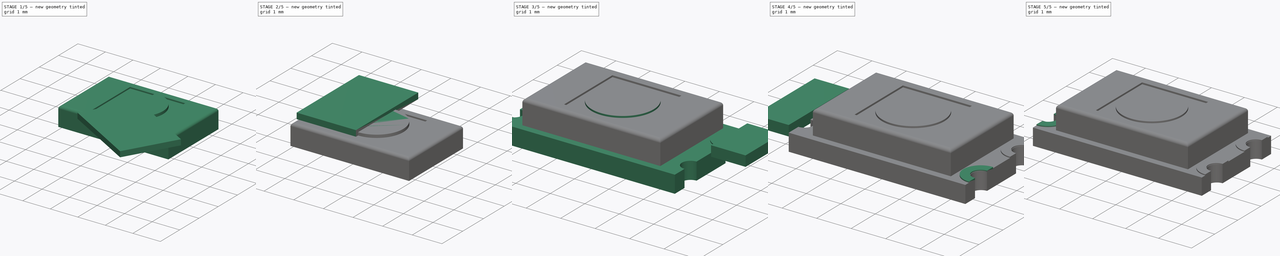
[diagram: build sequence overview — one tinted view per stage of 5, left to right]
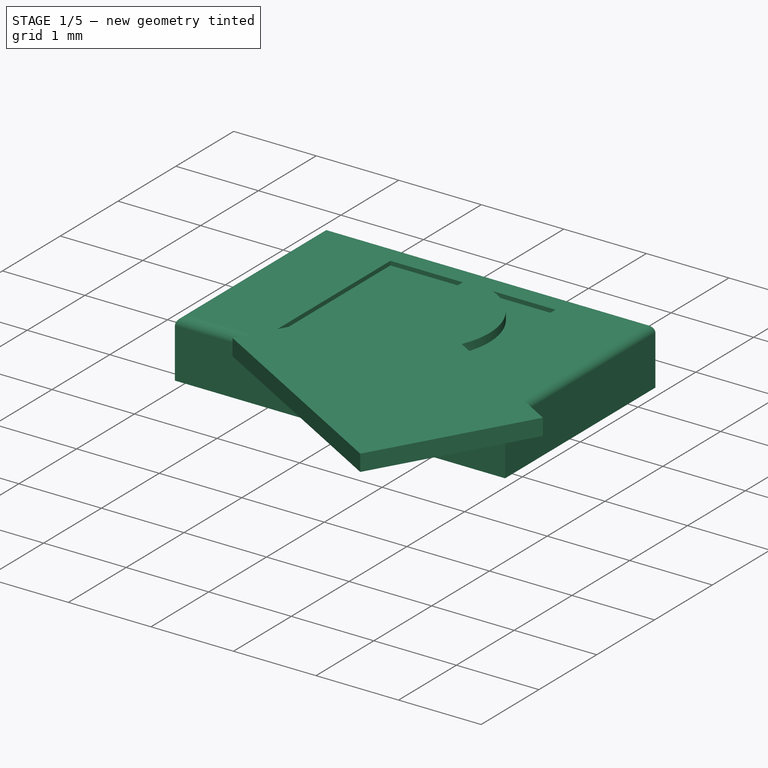
[diagram: stage 1 of 5 — iso view after this stage's code; geometry added in this stage tinted green]
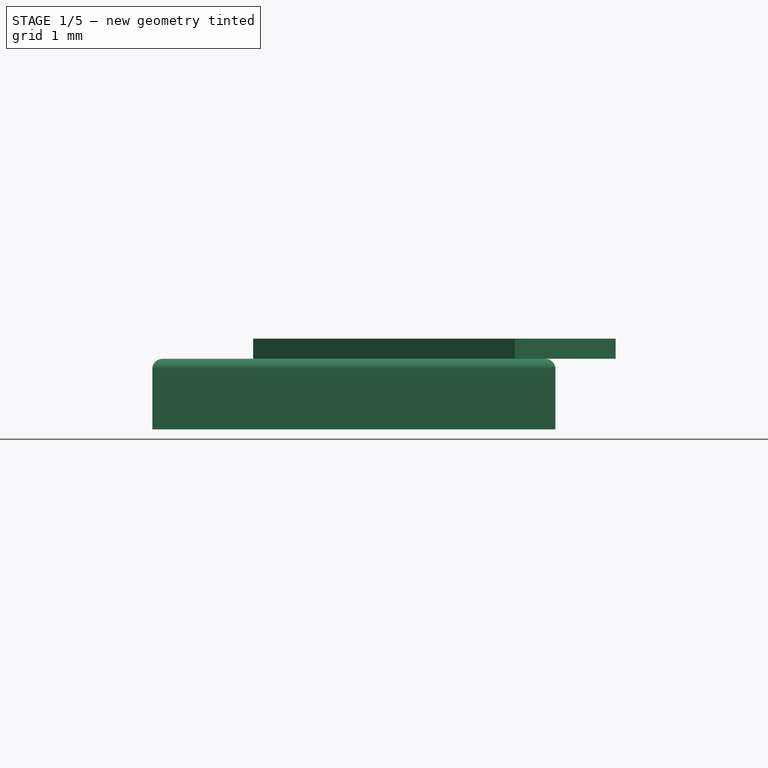
[diagram: stage 1 of 5 — front view after this stage's code; geometry added in this stage tinted green]
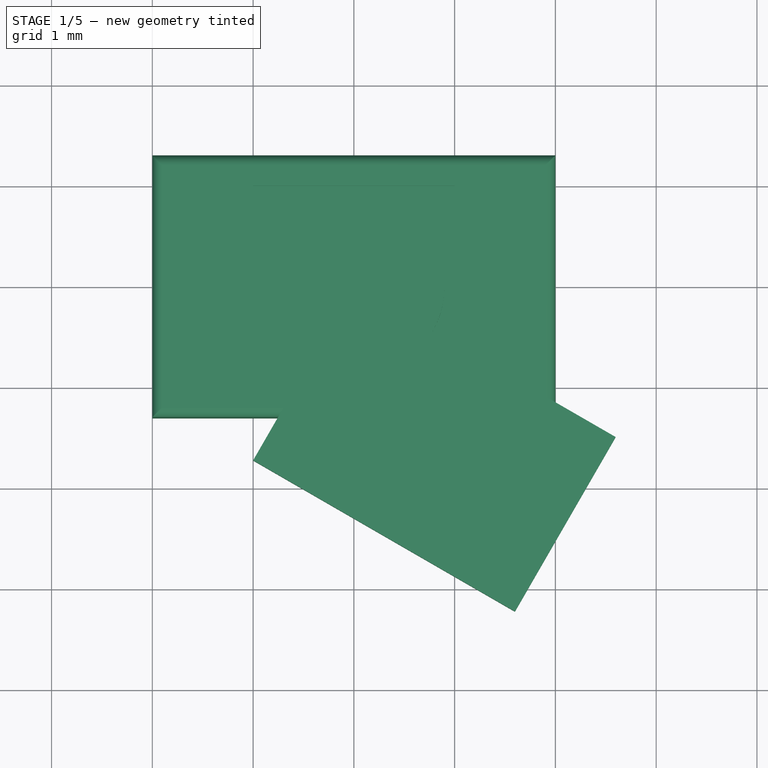
[diagram: stage 1 of 5 — top view after this stage's code; geometry added in this stage tinted green]
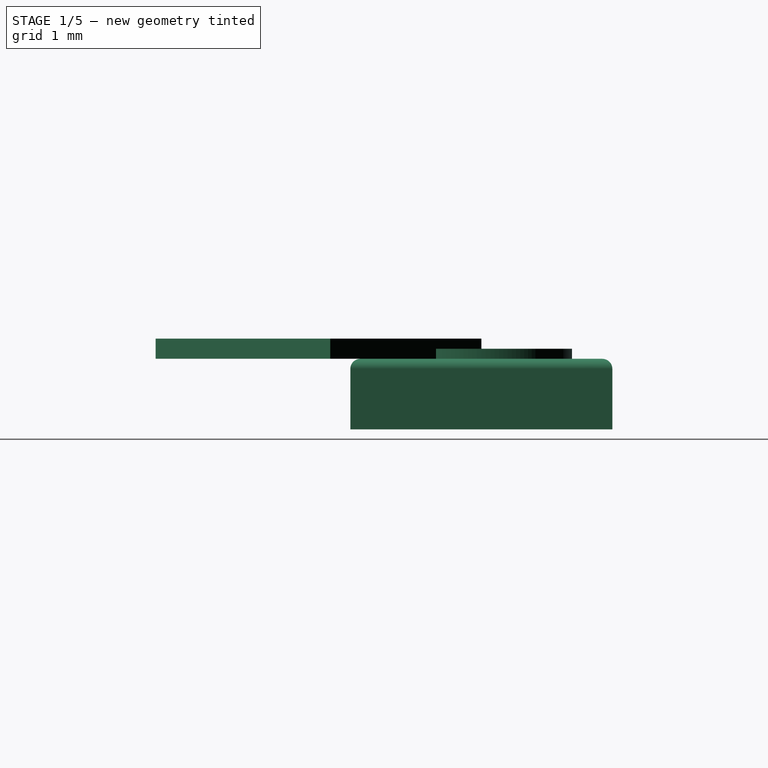
[diagram: stage 1 of 5 — right view after this stage's code; geometry added in this stage tinted green]
FCSTD DOCUMENT  (FreeCAD 0.17R11223 (Git))
Label: KPS-5130_05
License: All rights reserved
LicenseURL: http://en.wikipedia.org/wiki/All_rights_reserved
objects: Part::Cut×15, Part::Box×13, Part::Cylinder×11, Part::MultiFuse×2, Sketcher::SketchObject×1, PartDesign::Pad×1, PartDesign::Body×1, Part::Fillet×1
note: 46 computed .brp shape members not serialized (recipe doc carries the construction recipe); baked Part::Feature solids carry a one-line shape summary decoded from their .brp

FEATURE [PartDesign::Body] Body
  Group = -> [Sketch,Pad]
  Origin = -> BodyOrigin
  Tip = -> Pad
FEATURE [Part::Box] Box  label="Kub"
  AttacherType = Attacher::AttachEngine3D
  Height = 0.7
  Length = 4
  Placement = pos=(-2,-1.3,0.5) rot=(0,0,1;0rad)
  Width = 2.6
FEATURE [Part::Box] Box001  label="Kub001"
  AttacherType = Attacher::AttachEngine3D
  Height = 0.1
  Length = 2
  Placement = pos=(-1,-1,1.1) rot=(0,0,1;0rad)
  Width = 2
FEATURE [Part::Cut] Cut
  Base = -> Box
  Tool = -> Box001
FEATURE [Part::Cylinder] Cylinder002
  Angle = 360
  AttacherType = Attacher::AttachEngine3D
  Height = 0.1
  Placement = pos=(0,0,1.2) rot=(0,0,1;0rad)
  Radius = 0.9
FEATURE [Part::Box] Box006  label="Kub006"
  AttacherType = Attacher::AttachEngine3D
  Height = 0.2
  Length = 2
  Placement = pos=(-2,-1,1.2) rot=(0,0,1;0rad)
  Width = 3
FEATURE [Part::Box] Box007  label="Kub007"
  AttacherType = Attacher::AttachEngine3D
  Height = 0.2
  Length = 2
  Placement = pos=(0,0,1.2) rot=(0,0,-1;2.0944rad)
  Width = 3
FEATURE [Part::Cut] Cut005
  Base = -> Cylinder002
  Tool = -> Box006
FEATURE [Part::Box] Box008  label="Kub008"
  AttacherType = Attacher::AttachEngine3D
  Height = 0.2
  Length = 2
  Placement = pos=(-1,-1,0.95) rot=(0,0,1;0rad)
  Width = 2
FEATURE [Part::Fillet] Fillet
  Base = -> Cut
  Edges = 4 edges r=0.1: [Edge2,Edge7,Edge8,Edge9]
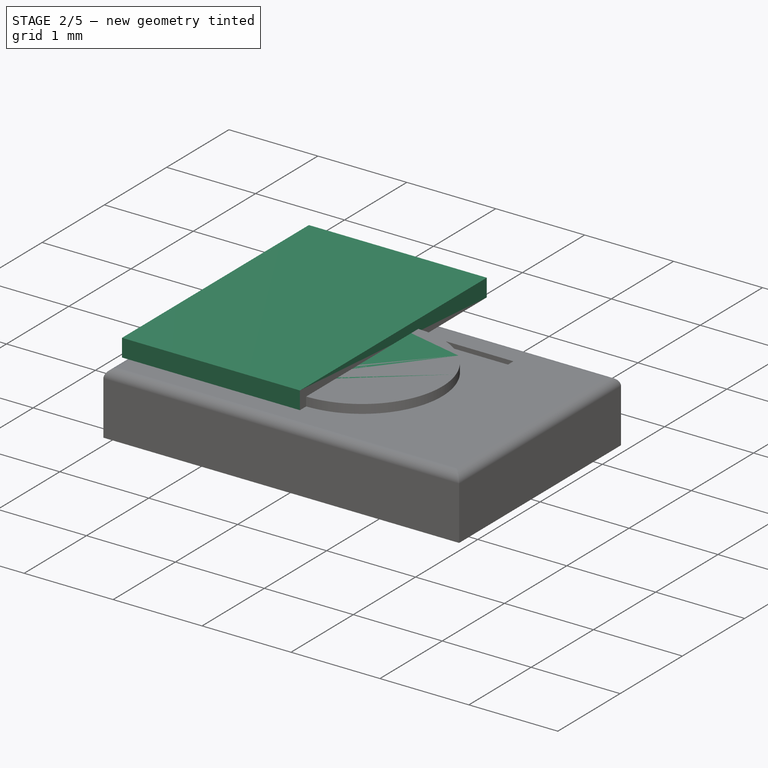
[diagram: stage 2 of 5 — iso view after this stage's code; geometry added in this stage tinted green]
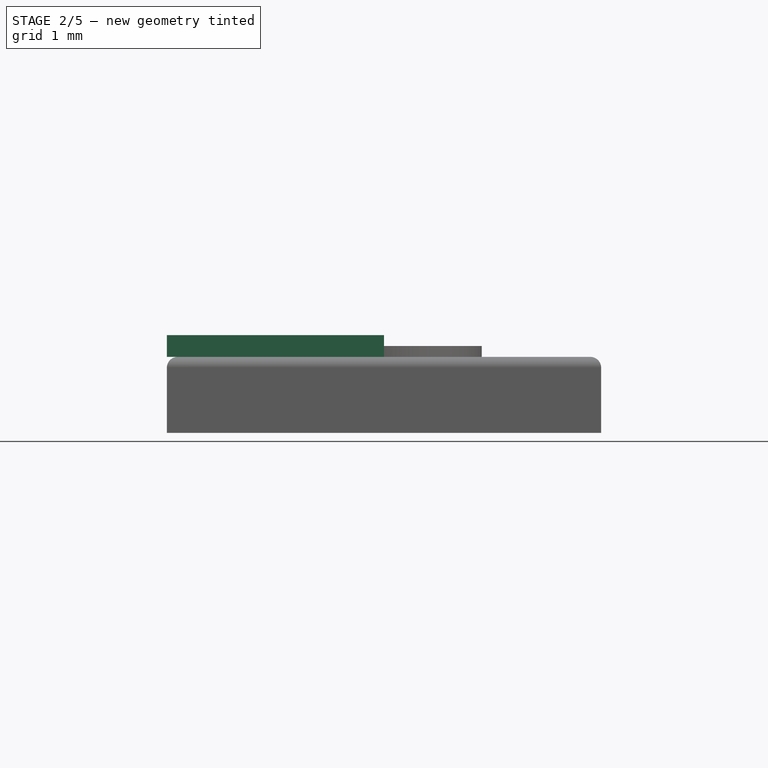
[diagram: stage 2 of 5 — front view after this stage's code; geometry added in this stage tinted green]
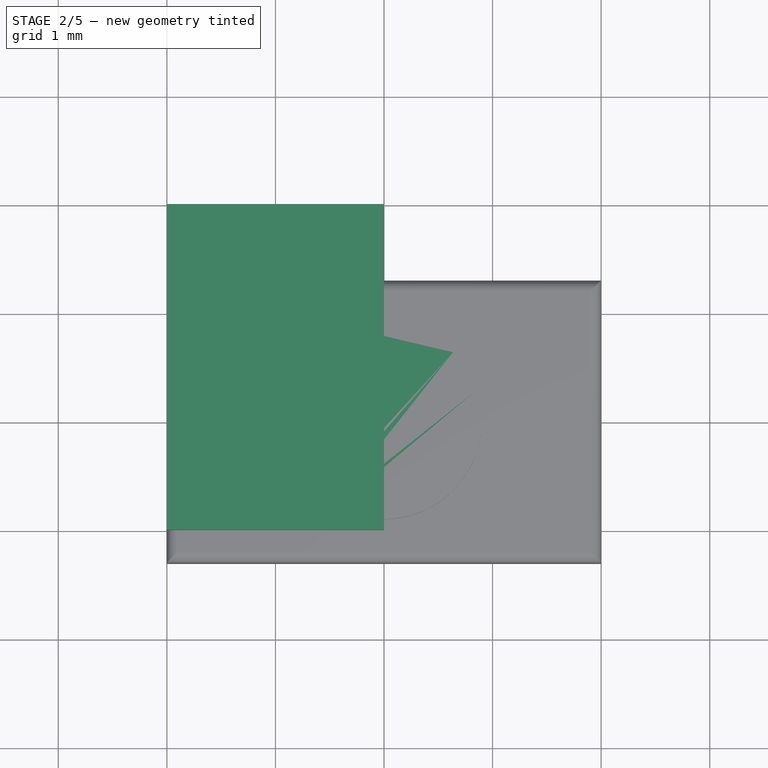
[diagram: stage 2 of 5 — top view after this stage's code; geometry added in this stage tinted green]
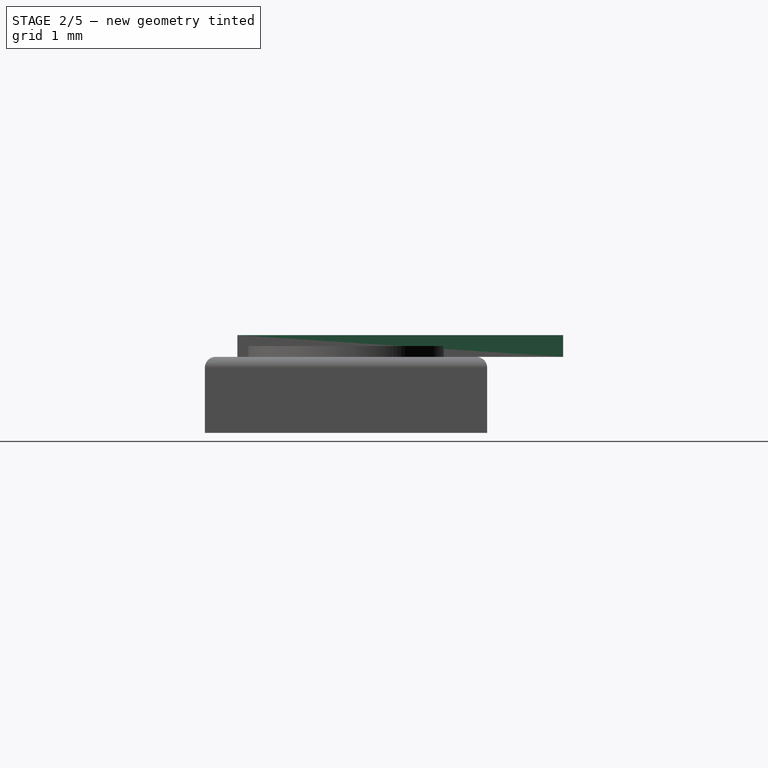
[diagram: stage 2 of 5 — right view after this stage's code; geometry added in this stage tinted green]
FEATURE [Part::Cylinder] Cylinder
  Angle = 360
  AttacherType = Attacher::AttachEngine3D
  Height = 0.1
  Placement = pos=(0,0,1.2) rot=(0,0,1;0rad)
  Radius = 0.9
FEATURE [Part::Box] Box002  label="Kub002"
  AttacherType = Attacher::AttachEngine3D
  Height = 0.2
  Length = 2
  Placement = pos=(-2,-1,1.2) rot=(0,0,1;0rad)
  Width = 3
FEATURE [Part::Cylinder] Cylinder001
  Angle = 360
  AttacherType = Attacher::AttachEngine3D
  Height = 0.1
  Placement = pos=(0,0,1.2) rot=(0,0,1;0rad)
  Radius = 0.9
FEATURE [Part::Box] Box004  label="Kub004"
  AttacherType = Attacher::AttachEngine3D
  Height = 0.2
  Length = 2
  Placement = pos=(-2,-1,1.2) rot=(0,0,1;0rad)
  Width = 3
FEATURE [Part::Box] Box005  label="Kub005"
  AttacherType = Attacher::AttachEngine3D
  Height = 0.2
  Length = 2
  Placement = pos=(0,0,1.2) rot=(0,0,-1;2.0944rad)
  Width = 3
FEATURE [Part::Cut] Cut003
  Base = -> Cylinder001
  Tool = -> Box004
FEATURE [Part::Cut] Cut004
  Base = -> Cut003
  Placement = pos=(0,0,0) rot=(0,0,1;2.0944rad)
  Tool = -> Box005
FEATURE [Part::Cut] Cut006
  Base = -> Cut005
  Placement = pos=(0,0,0) rot=(0,0,1;4.18879rad)
  Tool = -> Box007
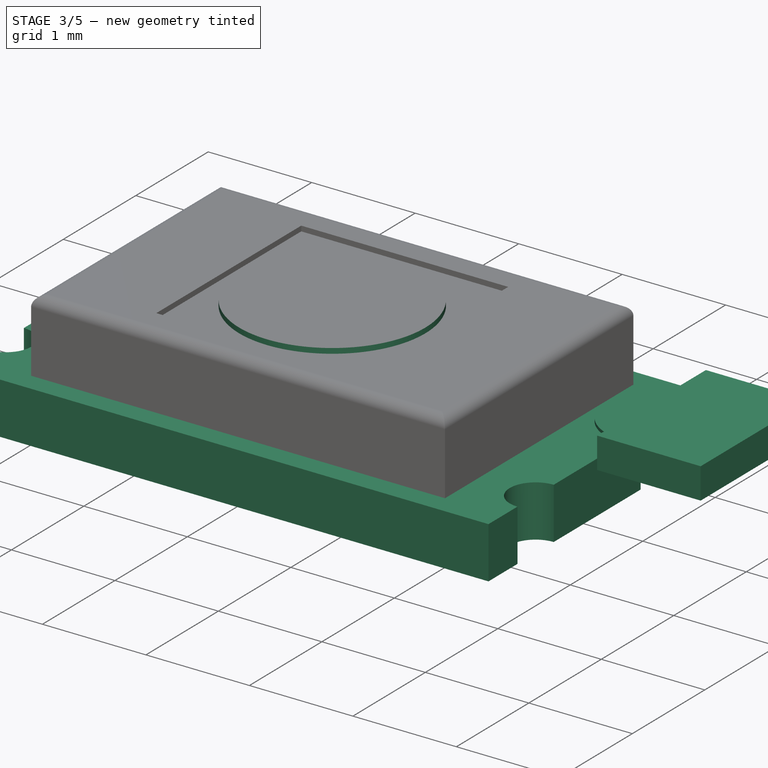
[diagram: stage 3 of 5 — iso view after this stage's code; geometry added in this stage tinted green]
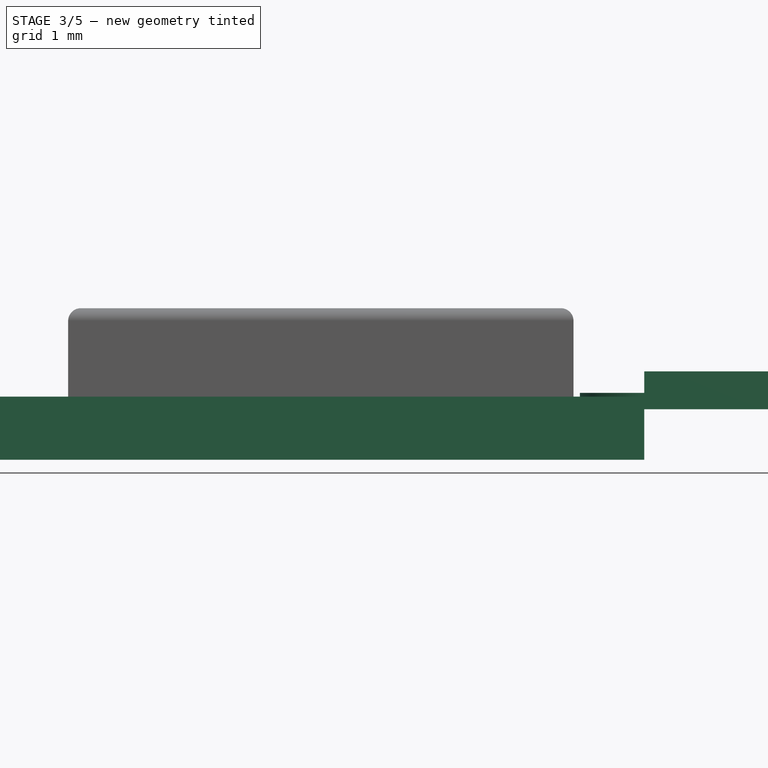
[diagram: stage 3 of 5 — front view after this stage's code; geometry added in this stage tinted green]
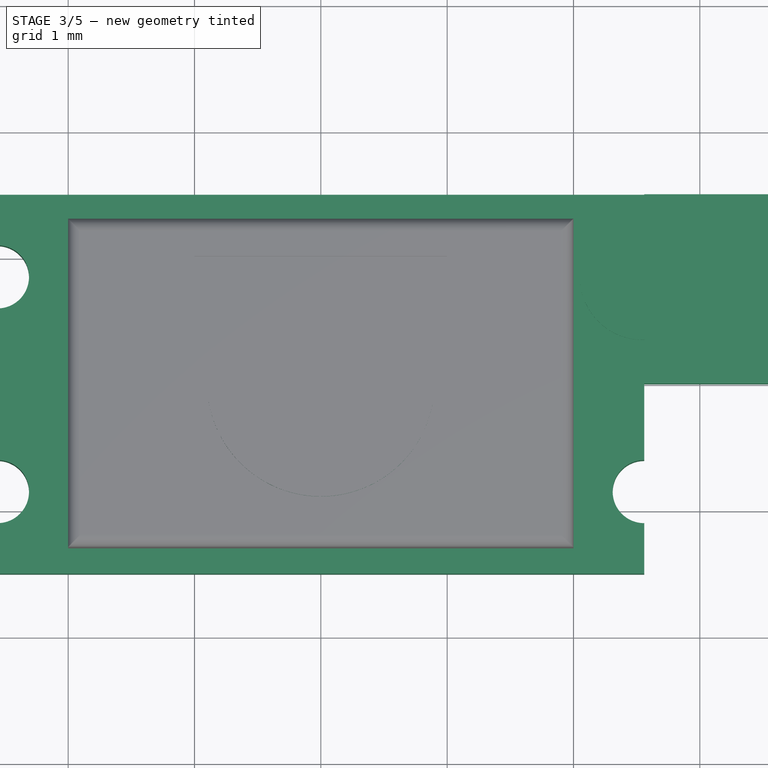
[diagram: stage 3 of 5 — top view after this stage's code; geometry added in this stage tinted green]
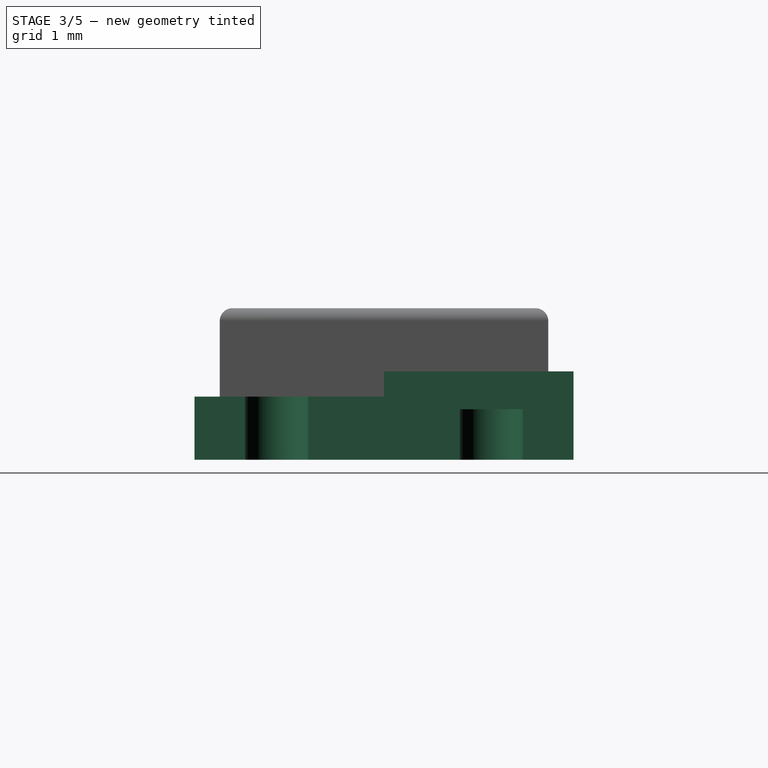
[diagram: stage 3 of 5 — right view after this stage's code; geometry added in this stage tinted green]
FEATURE [Sketcher::SketchObject] Sketch
  MapMode = 5
  Support = -> [XY_Plane]
  sketch-geometry (16):
    g0: LineSegment StartX=-2.56 StartY=1.1 StartZ=0 EndX=-2.56 EndY=1.5 EndZ=0
    g1: LineSegment StartX=-2.56 StartY=1.5 StartZ=0 EndX=2.56 EndY=1.5 EndZ=0
    g2: LineSegment StartX=2.56 StartY=1.5 StartZ=0 EndX=2.56 EndY=1.1 EndZ=0
    g3: LineSegment StartX=-2.56 StartY=0.4 StartZ=0 EndX=-2.56 EndY=-0.4 EndZ=0
    g4: LineSegment StartX=-2.56 StartY=-1.1 StartZ=0 EndX=-2.56 EndY=-1.5 EndZ=0
    g5: LineSegment StartX=-2.56 StartY=-1.5 StartZ=0 EndX=2.56 EndY=-1.5 EndZ=0
    g6: LineSegment StartX=2.56 StartY=-1.5 StartZ=0 EndX=2.56 EndY=-1.1 EndZ=0
    g7: LineSegment StartX=2.56 StartY=0.4 StartZ=0 EndX=2.56 EndY=-0.4 EndZ=0
    g8: ArcOfCircle CenterX=-2.56 CenterY=0.85 CenterZ=0 NormalX=0 NormalY=0 NormalZ=1 Radius=0.25 StartAngle=4.71239 EndAngle=7.85398
    g9: LineSegment StartX=-2.56 StartY=0.4 StartZ=0 EndX=-2.56 EndY=0.6 EndZ=0
    g10: LineSegment StartX=-2.56 StartY=-0.4 StartZ=0 EndX=-2.56 EndY=-0.6 EndZ=0
    g11: ArcOfCircle CenterX=-2.56 CenterY=-0.85 CenterZ=0 NormalX=0 NormalY=0 NormalZ=1 Radius=0.25 StartAngle=4.71239 EndAngle=7.85398
    g12: LineSegment StartX=2.56 StartY=-0.4 StartZ=0 EndX=2.56 EndY=-0.6 EndZ=0
    g13: ArcOfCircle CenterX=2.56 CenterY=-0.85 CenterZ=0 NormalX=0 NormalY=0 NormalZ=1 Radius=0.25 StartAngle=1.5708 EndAngle=4.71239
    g14: LineSegment StartX=2.56 StartY=0.4 StartZ=0 EndX=2.56 EndY=0.6 EndZ=0
    g15: ArcOfCircle CenterX=2.56 CenterY=0.85 CenterZ=0 NormalX=0 NormalY=0 NormalZ=1 Radius=0.25 StartAngle=1.5708 EndAngle=4.71239
  constraints (53):
    c: Vertical(g0)
    c: Coincident(g1,g0)
    c: Horizontal(g1)
    c: Coincident(g2,g1)
    c: Vertical(g2)
    c: Vertical(g3)
    c: Vertical(g4)
    c: Coincident(g5,g4)
    c: Horizontal(g5)
    c: Coincident(g6,g5)
    c: Vertical(g6)
    c: Vertical(g7)
    c: DistanceY(g7,g7) = 0.8
    c: DistanceX(g0,g1) = 5.12
    c: DistanceX(g4,g5) = 5.12
    c: DistanceX(g0,g3) = 0
    c: DistanceY(g3,g3) = 0.8
    c: DistanceY(g4,g0) = 3
    c: DistanceY(g-1,g0) = 1.5
    c: DistanceX(g0,g-1) = 2.56
    c: DistanceY(g2,g1) = 0.4
    c: DistanceY(g3,g0) = 1.1
    c: DistanceY(g8,g0) = 0.65
    c: Coincident(g9,g3)
    c: Coincident(g9,g8)
    c: DistanceX(g0,g8) = 0
    c: DistanceY(g8,g0) = 0
    c: DistanceY(g0,g0) = 0.4
    c: Coincident(g10,g3)
    c: Vertical(g10)
    c: DistanceX(g3,g8) = 0
    c: DistanceX(g8,g8) = 0
    c: Coincident(g11,g10)
    c: Coincident(g11,g4)
    c: DistanceX(g11,g10) = 0
    c: DistanceY(g4,g4) = 0.4
    c: DistanceY(g4,g11) = 0.65
    c: Coincident(g12,g7)
    c: Vertical(g12)
    c: Coincident(g13,g12)
    c: Coincident(g13,g6)
    c: DistanceY(g5,g6) = 0.4
    c: DistanceY(g5,g13) = 0.65
    c: DistanceX(g13,g12) = 0
    c: Coincident(g14,g7)
    c: Vertical(g14)
    c: DistanceY(g7,g1) = 1.1
    c: DistanceX(g6,g13) = 0
    c: DistanceX(g14,g2) = 0
    c: Coincident(g15,g2)
    c: Coincident(g15,g14)
    c: DistanceX(g15,g2) = 0
    c: DistanceY(g15,g1) = 0.65
FEATURE [PartDesign::Pad] Pad
  Length = 0.5
  Length2 = 100
  Profile = -> Sketch
  Type = 0
FEATURE [Part::Box] Box003  label="Kub003"
  AttacherType = Attacher::AttachEngine3D
  Height = 0.2
  Length = 2
  Placement = pos=(0,0,1.2) rot=(0,0,-1;2.0944rad)
  Width = 3
FEATURE [Part::Cut] Cut001
  Base = -> Cylinder
  Tool = -> Box002
FEATURE [Part::Cut] Cut002
  Base = -> Cut001
  Tool = -> Box003
FEATURE [Part::MultiFuse] Fusion  label="Colour"
  Placement = pos=(0,0,-0.1) rot=(0,0,1;0rad)
  Shapes = -> [Cut002,Cut004,Cut006]
FEATURE [Part::Cylinder] Cylinder005
  Angle = 360
  AttacherType = Attacher::AttachEngine3D
  Height = 0.05
  Placement = pos=(2.55,0.85,0.48) rot=(0,0,1;0rad)
  Radius = 0.5
FEATURE [Part::Cylinder] Cylinder010
  Angle = 360
  AttacherType = Attacher::AttachEngine3D
  Height = 0.05
  Placement = pos=(2.55,0.85,0.48) rot=(0,0,1;0rad)
  Radius = 0.25
FEATURE [Part::Box] Box010  label="Kub010"
  AttacherType = Attacher::AttachEngine3D
  Height = 0.3
  Length = 1
  Placement = pos=(2.56,0,0.4) rot=(0,0,1;0rad)
  Width = 1.5
FEATURE [Part::MultiFuse] Fusion001
  Shapes = -> [Fillet,Fusion,Box008,Body]
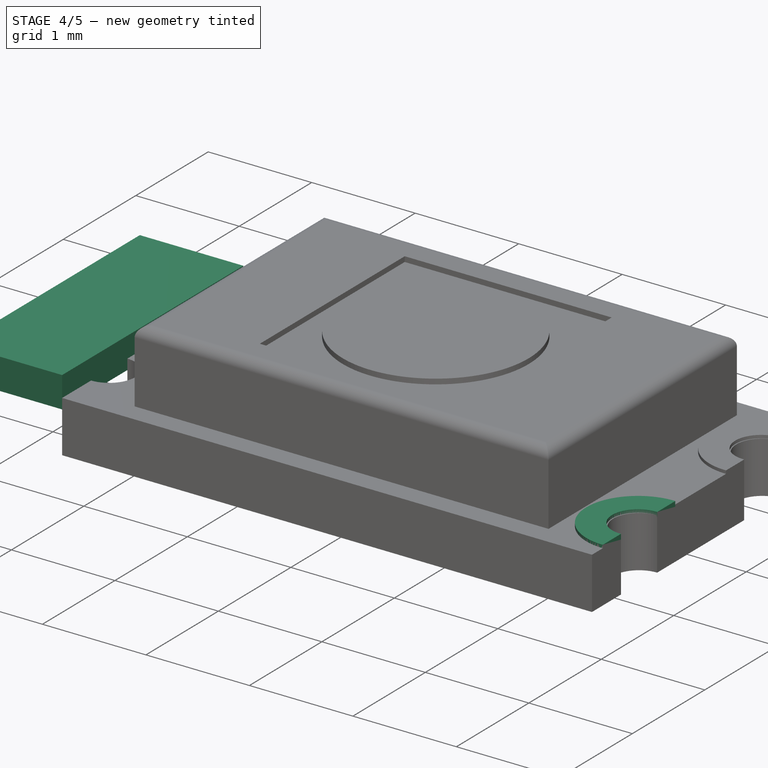
[diagram: stage 4 of 5 — iso view after this stage's code; geometry added in this stage tinted green]
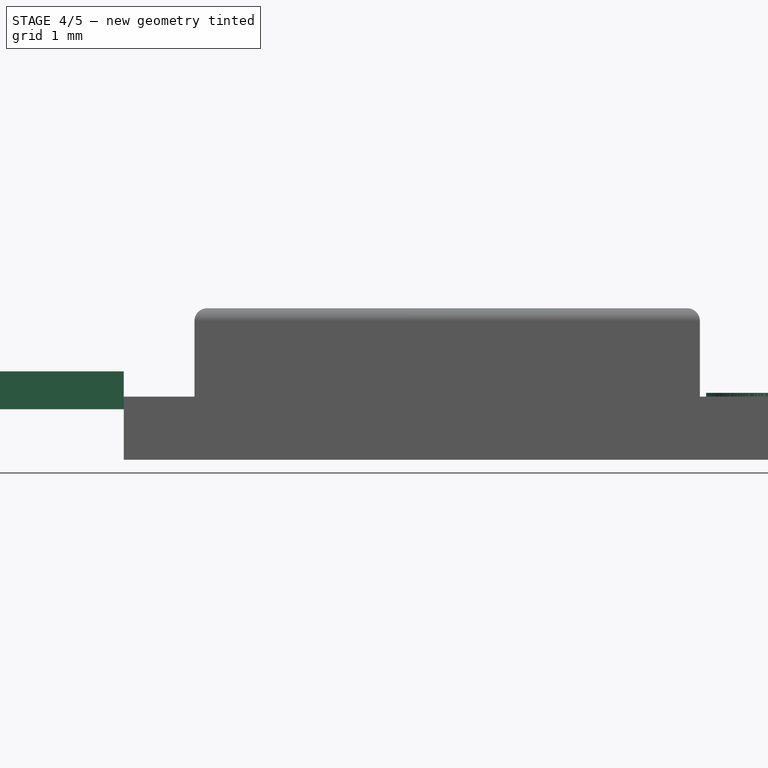
[diagram: stage 4 of 5 — front view after this stage's code; geometry added in this stage tinted green]
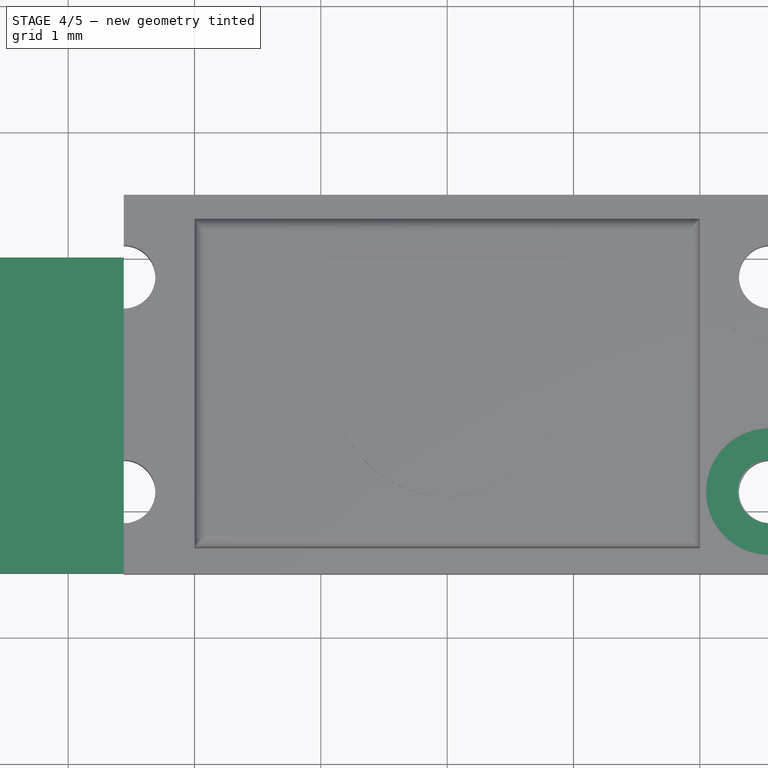
[diagram: stage 4 of 5 — top view after this stage's code; geometry added in this stage tinted green]
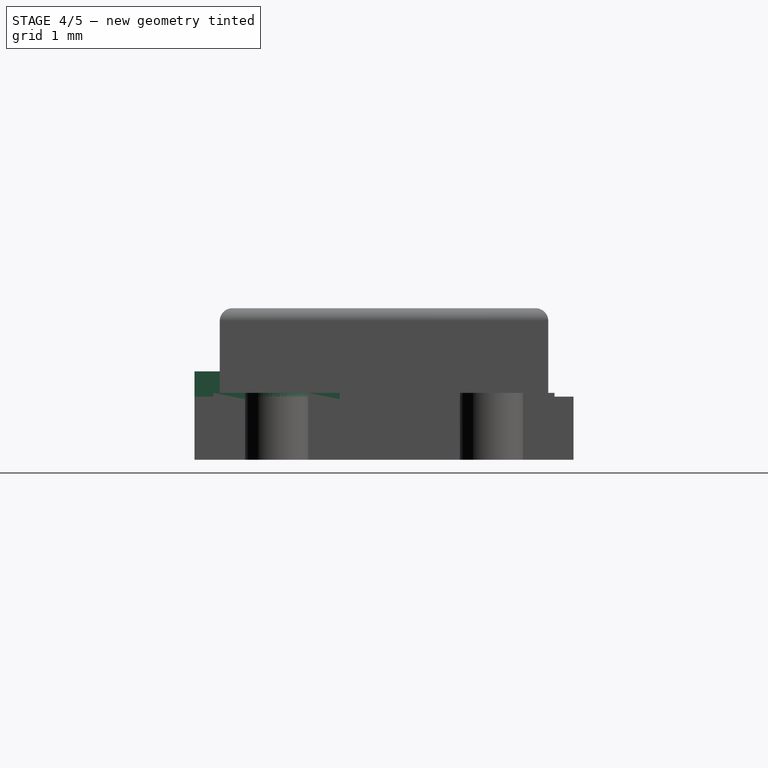
[diagram: stage 4 of 5 — right view after this stage's code; geometry added in this stage tinted green]
FEATURE [Part::Cylinder] Cylinder006
  Angle = 360
  AttacherType = Attacher::AttachEngine3D
  Height = 0.05
  Placement = pos=(2.55,-0.85,0.48) rot=(0,0,1;0rad)
  Radius = 0.5
FEATURE [Part::Cylinder] Cylinder009
  Angle = 360
  AttacherType = Attacher::AttachEngine3D
  Height = 0.05
  Placement = pos=(2.55,-0.85,0.48) rot=(0,0,1;0rad)
  Radius = 0.25
FEATURE [Part::Cut] Cut009
  Base = -> Cylinder006
  Tool = -> Cylinder009
FEATURE [Part::Cut] Cut010
  Base = -> Cylinder005
  Tool = -> Cylinder010
FEATURE [Part::Box] Box009  label="Kub009"
  AttacherType = Attacher::AttachEngine3D
  Height = 0.3
  Length = 1
  Placement = pos=(2.56,-1.5,0.4) rot=(0,0,1;0rad)
  Width = 1.5
FEATURE [Part::Box] Box011  label="Kub011"
  AttacherType = Attacher::AttachEngine3D
  Height = 0.3
  Length = 1
  Placement = pos=(-3.56,-1.5,0.4) rot=(0,0,1;0rad)
  Width = 2.5
FEATURE [Part::Cut] Cut013
  Base = -> Cut009
  Tool = -> Box009
FEATURE [Part::Cut] Cut014
  Base = -> Cut010
  Tool = -> Box010
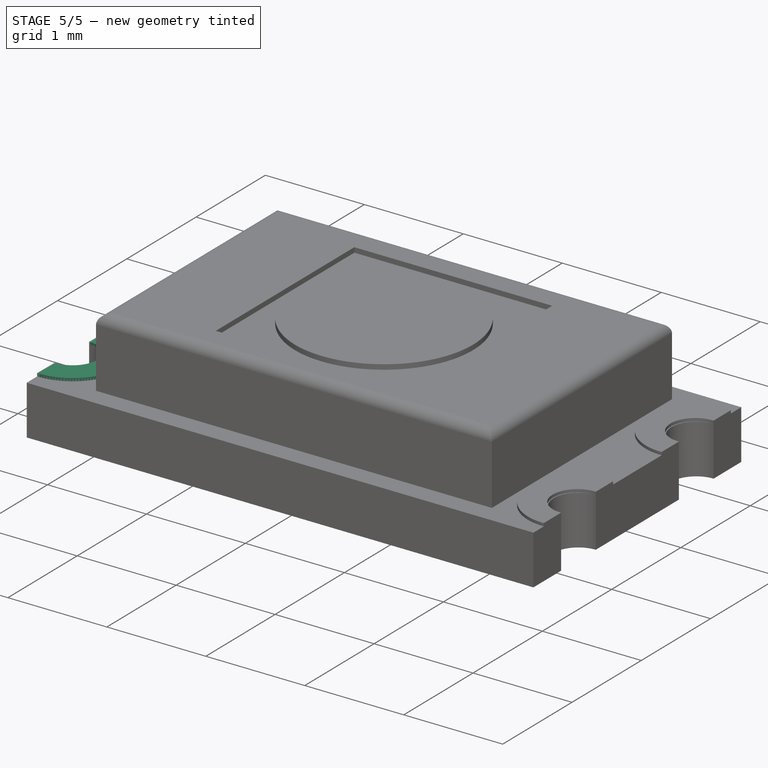
[diagram: stage 5 of 5 — iso view after this stage's code; geometry added in this stage tinted green]
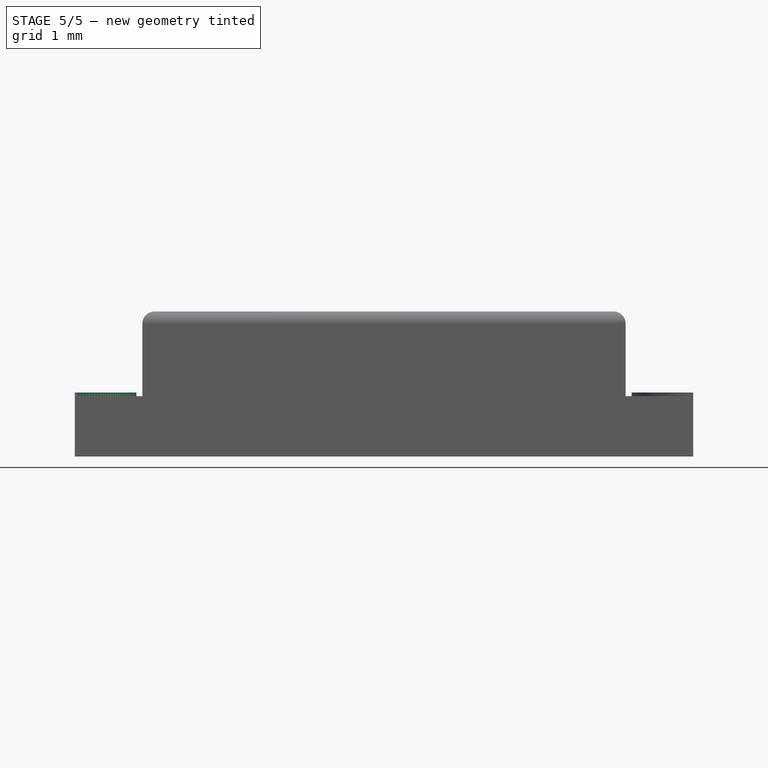
[diagram: stage 5 of 5 — front view after this stage's code; geometry added in this stage tinted green]
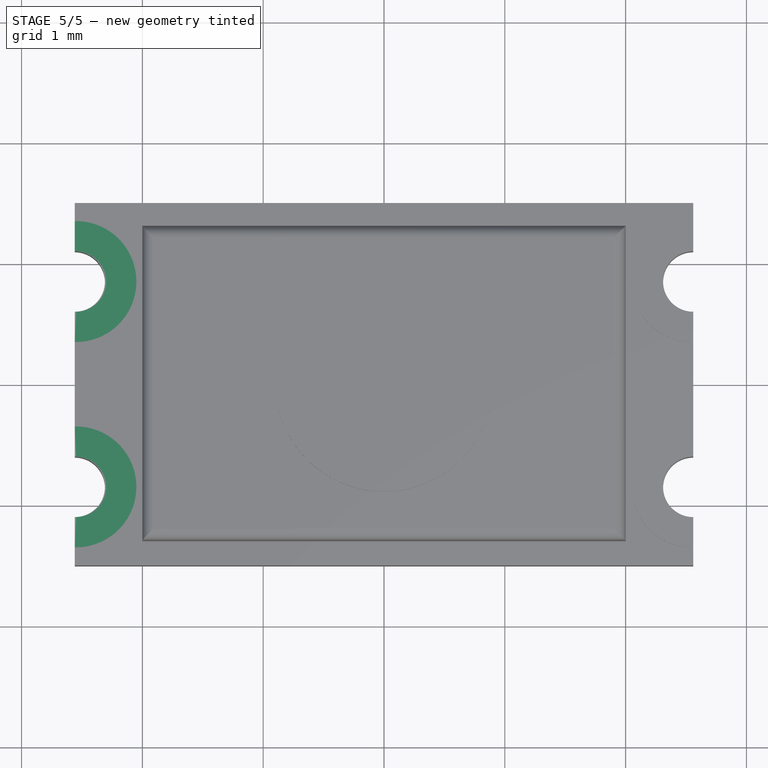
[diagram: stage 5 of 5 — top view after this stage's code; geometry added in this stage tinted green]
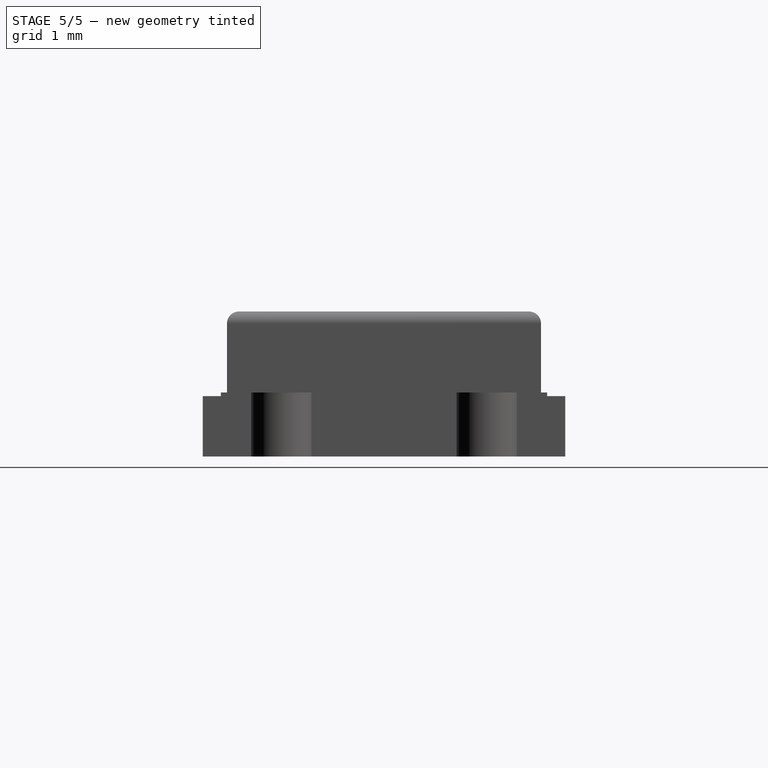
[diagram: stage 5 of 5 — right view after this stage's code; geometry added in this stage tinted green]
FEATURE [Part::Cylinder] Cylinder003
  Angle = 360
  AttacherType = Attacher::AttachEngine3D
  Height = 0.05
  Placement = pos=(-2.55,-0.85,0.48) rot=(0,0,1;0rad)
  Radius = 0.5
FEATURE [Part::Cylinder] Cylinder004
  Angle = 360
  AttacherType = Attacher::AttachEngine3D
  Height = 0.05
  Placement = pos=(-2.55,0.85,0.48) rot=(0,0,1;0rad)
  Radius = 0.5
FEATURE [Part::Cylinder] Cylinder007
  Angle = 360
  AttacherType = Attacher::AttachEngine3D
  Height = 0.05
  Placement = pos=(-2.55,0.85,0.48) rot=(0,0,1;0rad)
  Radius = 0.25
FEATURE [Part::Cut] Cut007
  Base = -> Cylinder004
  Tool = -> Cylinder007
FEATURE [Part::Cylinder] Cylinder008
  Angle = 360
  AttacherType = Attacher::AttachEngine3D
  Height = 0.05
  Placement = pos=(-2.55,-0.85,0.48) rot=(0,0,1;0rad)
  Radius = 0.25
FEATURE [Part::Cut] Cut008
  Base = -> Cylinder003
  Tool = -> Cylinder008
FEATURE [Part::Box] Box012  label="Kub012"
  AttacherType = Attacher::AttachEngine3D
  Height = 0.3
  Length = 1
  Placement = pos=(-3.56,0,0.4) rot=(0,0,1;0rad)
  Width = 1.5
FEATURE [Part::Cut] Cut011
  Base = -> Cut007
  Tool = -> Box012
FEATURE [Part::Cut] Cut012
  Base = -> Cut008
  Tool = -> Box011
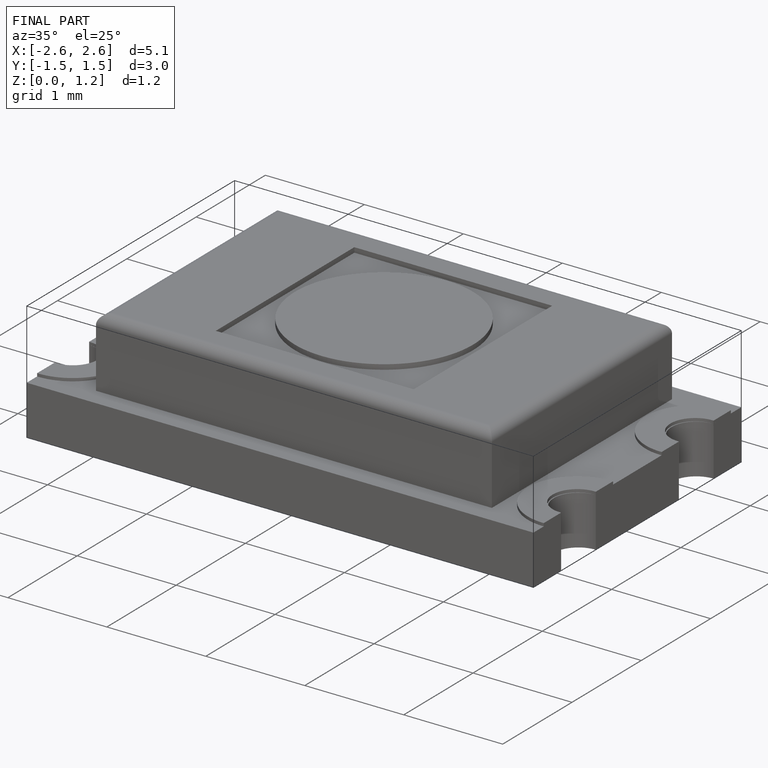
[diagram: finished part — iso view with bounding-box wireframe]
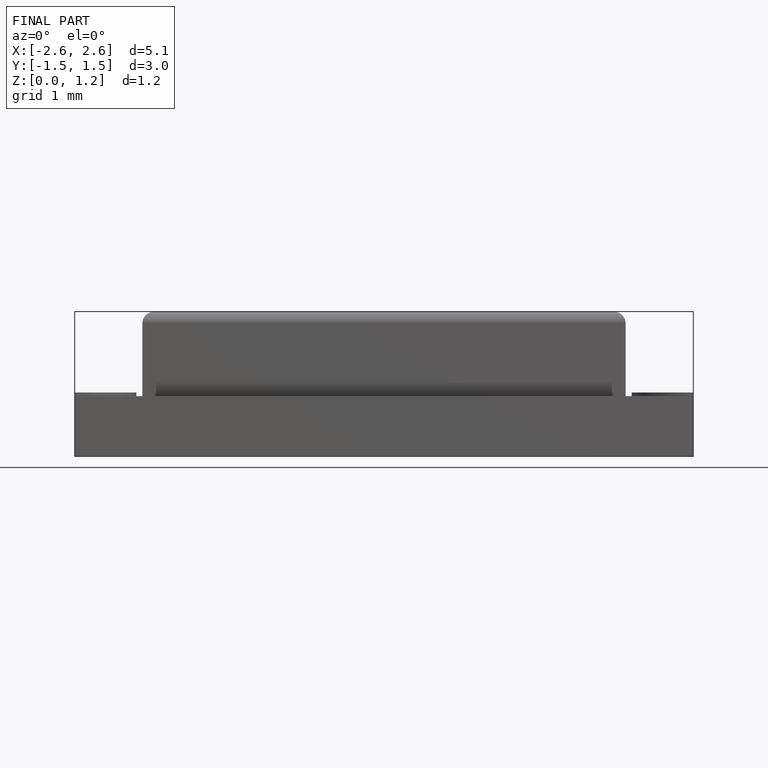
[diagram: finished part — front view with bounding-box wireframe]
